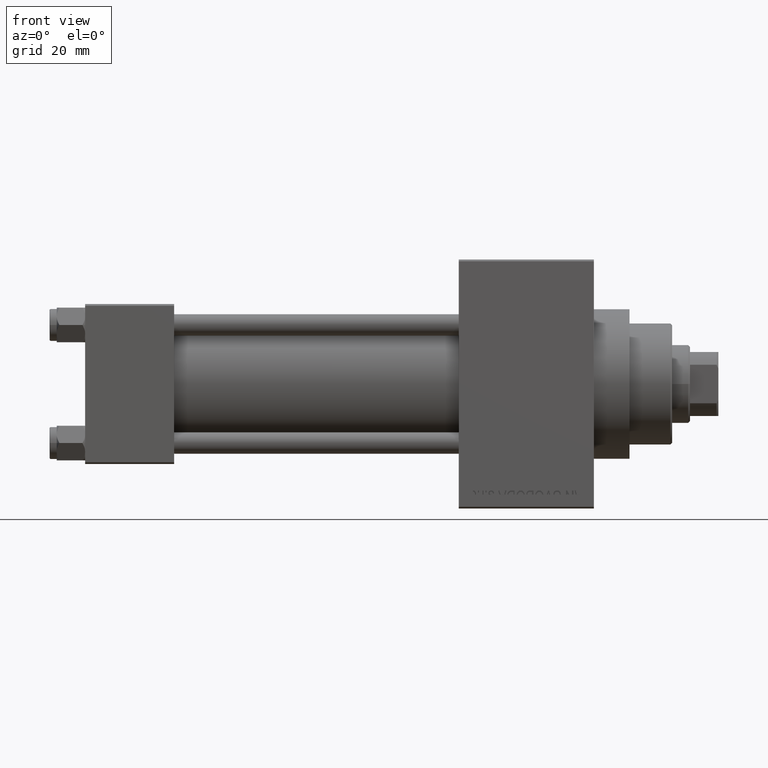
[diagram: clean part render]
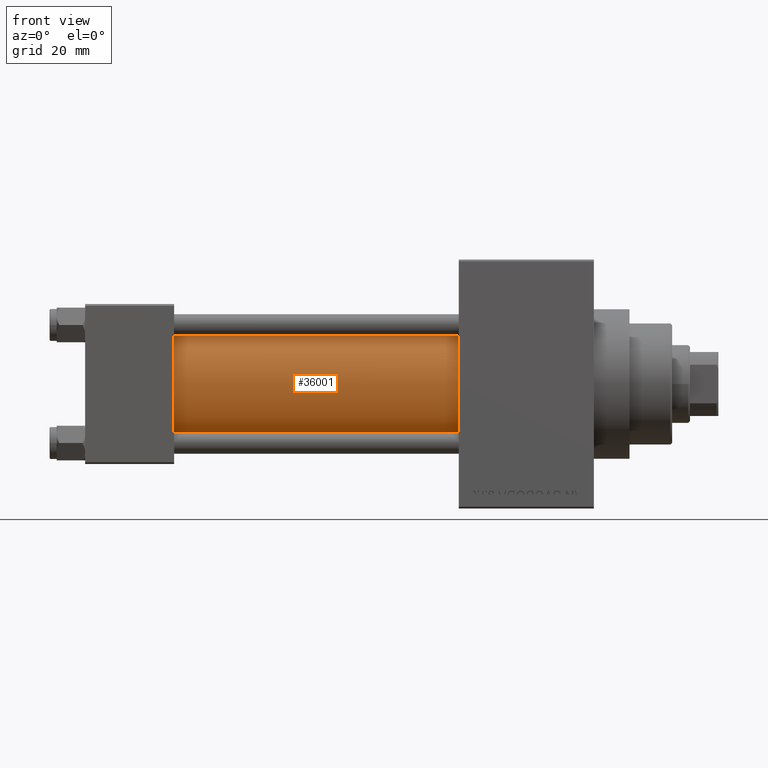
[diagram: same view with one face highlighted and labeled with its STEP entity id]
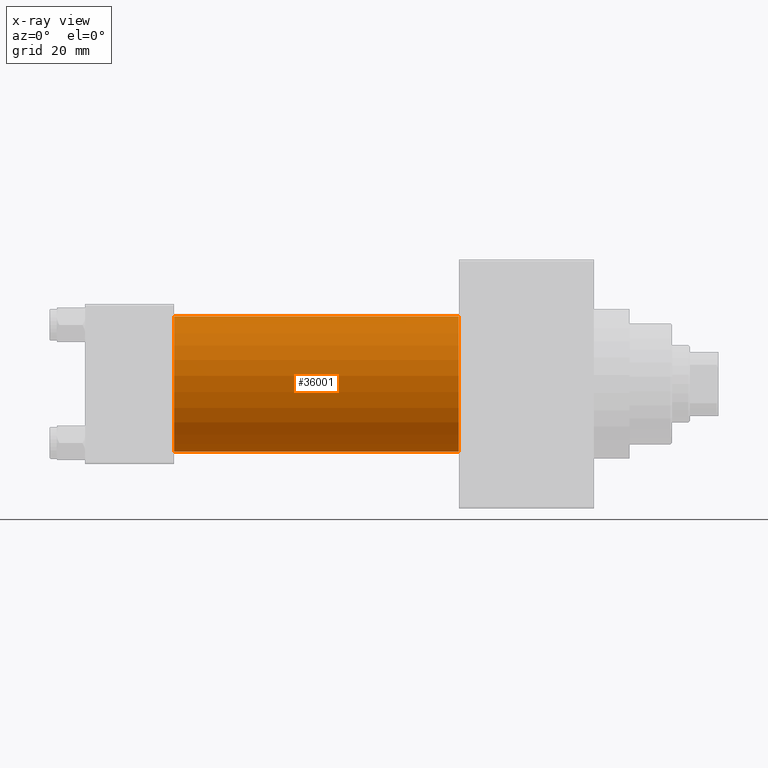
[diagram: x-ray of the same camera — body ghosted, the highlighted face saturated]
A machine part, front view. The second image highlights one B-rep face of the part: STEP entity #36001.
The next image is the same camera in x-ray: the body ghosted, the highlighted face saturated — about 0% of this face is hidden behind the body in this view.
In plain terms, the highlighted cylindrical surface (partial cylindrical patch) has radius 19 mm, axis along (-1, -0, -0).
Its self-contained STEP definition (entity closure, byte-faithful):
#130 = CARTESIAN_POINT ( 'NONE',  ( 105.0000000000000142, -2.602085213965210642E-15, 0.000000000000000000 ) ) ;
#1122 = DIRECTION ( 'NONE',  ( 0.000000000000000000, 0.000000000000000000, -1.000000000000000000 ) ) ;
#1405 = ORIENTED_EDGE ( 'NONE', *, *, #36813, .T. ) ;
#2468 = ORIENTED_EDGE ( 'NONE', *, *, #18760, .F. ) ;
#4017 = EDGE_LOOP ( 'NONE', ( #39216, #2468, #1405, #20916 ) ) ;
#4443 = CIRCLE ( 'NONE', #10559, 19.00000000000000000 ) ;
#5715 = VERTEX_POINT ( 'NONE', #43136 ) ;
#5848 = EDGE_CURVE ( 'NONE', #5715, #38058, #32331, .T. ) ;
#10247 = AXIS2_PLACEMENT_3D ( 'NONE', #26643, #30212, #41186 ) ;
#10559 = AXIS2_PLACEMENT_3D ( 'NONE', #47013, #12345, #1122 ) ;
#11606 = FACE_OUTER_BOUND ( 'NONE', #4017, .T. ) ;
#12345 = DIRECTION ( 'NONE',  ( 1.000000000000000000, 0.000000000000000000, 0.000000000000000000 ) ) ;
#14635 = LINE ( 'NONE', #42786, #41459 ) ;
#14781 = AXIS2_PLACEMENT_3D ( 'NONE', #130, #18535, #33078 ) ;
#18535 = DIRECTION ( 'NONE',  ( -1.000000000000000000, -0.000000000000000000, -0.000000000000000000 ) ) ;
#18760 = EDGE_CURVE ( 'NONE', #40146, #29119, #4443, .T. ) ;
#20916 = ORIENTED_EDGE ( 'NONE', *, *, #5848, .T. ) ;
#24461 = LINE ( 'NONE', #43684, #24794 ) ;
#24794 = VECTOR ( 'NONE', #32479, 1000.000000000000000 ) ;
#24862 = CARTESIAN_POINT ( 'NONE',  ( 105.0000000000000142, -2.752562955852396712E-16, -19.00000000000000000 ) ) ;
#26399 = CYLINDRICAL_SURFACE ( 'NONE', #14781, 19.00000000000000000 ) ;
#26643 = CARTESIAN_POINT ( 'NONE',  ( 24.99999999999999289, -2.602085213965210642E-15, 0.000000000000000000 ) ) ;
#29119 = VERTEX_POINT ( 'NONE', #24862 ) ;
#30212 = DIRECTION ( 'NONE',  ( 1.000000000000000000, -0.000000000000000000, 0.000000000000000000 ) ) ;
#30813 = CARTESIAN_POINT ( 'NONE',  ( 24.99999999999999289, -2.752562955852396712E-16, -19.00000000000000000 ) ) ;
#32044 = DIRECTION ( 'NONE',  ( -1.000000000000000000, -0.000000000000000000, -0.000000000000000000 ) ) ;
#32331 = CIRCLE ( 'NONE', #10247, 19.00000000000000000 ) ;
#32479 = DIRECTION ( 'NONE',  ( -1.000000000000000000, -0.000000000000000000, -0.000000000000000000 ) ) ;
#32660 = CARTESIAN_POINT ( 'NONE',  ( 105.0000000000000142, -2.602085213965210642E-15, 19.00000000000000000 ) ) ;
#33078 = DIRECTION ( 'NONE',  ( 0.000000000000000000, 0.000000000000000000, 1.000000000000000000 ) ) ;
#36001 = ADVANCED_FACE ( 'NONE', ( #11606 ), #26399, .T. ) ;
#36813 = EDGE_CURVE ( 'NONE', #40146, #5715, #14635, .T. ) ;
#38058 = VERTEX_POINT ( 'NONE', #30813 ) ;
#39179 = EDGE_CURVE ( 'NONE', #29119, #38058, #24461, .T. ) ;
#39216 = ORIENTED_EDGE ( 'NONE', *, *, #39179, .F. ) ;
#40146 = VERTEX_POINT ( 'NONE', #32660 ) ;
#41186 = DIRECTION ( 'NONE',  ( 0.000000000000000000, 0.000000000000000000, 1.000000000000000000 ) ) ;
#41459 = VECTOR ( 'NONE', #32044, 1000.000000000000000 ) ;
#42786 = CARTESIAN_POINT ( 'NONE',  ( 105.0000000000000142, -2.602085213965210642E-15, 19.00000000000000000 ) ) ;
#43136 = CARTESIAN_POINT ( 'NONE',  ( 24.99999999999999289, -2.602085213965210642E-15, 19.00000000000000000 ) ) ;
#43684 = CARTESIAN_POINT ( 'NONE',  ( 105.0000000000000142, -2.752562955852396712E-16, -19.00000000000000000 ) ) ;
#47013 = CARTESIAN_POINT ( 'NONE',  ( 105.0000000000000142, -2.602085213965210642E-15, 0.000000000000000000 ) ) ;